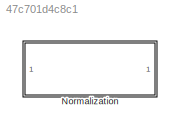
MODEL slx_47c701d4c8c1
KIND library
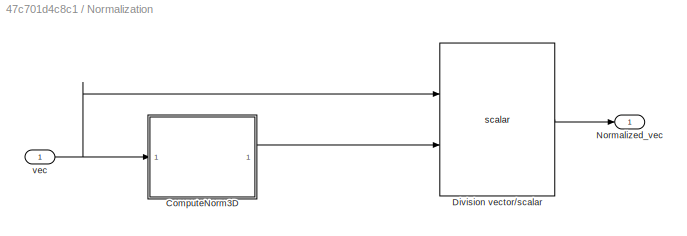
BLOCK [SubSystem] Normalization
  Ports = [1, 1]
  RequestExecContextInheritance = off
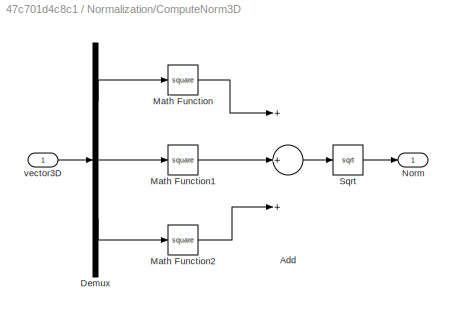
BLOCK [SubSystem] Normalization/ComputeNorm3D
  Ports = [1, 1]
  RequestExecContextInheritance = off
BLOCK [Sum] Normalization/ComputeNorm3D/Add
  InputSameDT = off
  Inputs = +++
  OutDataTypeStr = Inherit: Inherit via internal rule
  Ports = [3, 1]
  SaturateOnIntegerOverflow = off
BLOCK [Demux] Normalization/ComputeNorm3D/Demux
  DisplayOption = bar
  Outputs = 3
  Ports = [1, 3]
BLOCK [Math] Normalization/ComputeNorm3D/Math Function
  Operator = square
  Ports = [1, 1]
BLOCK [Math] Normalization/ComputeNorm3D/Math Function1
  Operator = square
  Ports = [1, 1]
BLOCK [Math] Normalization/ComputeNorm3D/Math Function2
  Operator = square
  Ports = [1, 1]
BLOCK [Outport] Normalization/ComputeNorm3D/Norm
  IconDisplay = Port number
BLOCK [Sqrt] Normalization/ComputeNorm3D/Sqrt
BLOCK [Inport] Normalization/ComputeNorm3D/vector3D
  IconDisplay = Port number
BLOCK [Reference] Normalization/Division vector//scalar  REF=DivisionVectorScalar/Division vector//scalar
  Ports = [2, 1]
  SourceBlock = DivisionVectorScalar/Division vector//scalar
  SourceType = SubSystem
BLOCK [Outport] Normalization/Normalized_vec
  IconDisplay = Port number
BLOCK [Inport] Normalization/vec
  IconDisplay = Port number
LINE Normalization/ComputeNorm3D/Add:1 -> Normalization/ComputeNorm3D/Sqrt:1
LINE Normalization/ComputeNorm3D/Demux:1 -> Normalization/ComputeNorm3D/Math Function:1
LINE Normalization/ComputeNorm3D/Demux:2 -> Normalization/ComputeNorm3D/Math Function1:1
LINE Normalization/ComputeNorm3D/Demux:3 -> Normalization/ComputeNorm3D/Math Function2:1
LINE Normalization/ComputeNorm3D/Math Function1:1 -> Normalization/ComputeNorm3D/Add:2
LINE Normalization/ComputeNorm3D/Math Function2:1 -> Normalization/ComputeNorm3D/Add:3
LINE Normalization/ComputeNorm3D/Math Function:1 -> Normalization/ComputeNorm3D/Add:1
LINE Normalization/ComputeNorm3D/Sqrt:1 -> Normalization/ComputeNorm3D/Norm:1
LINE Normalization/ComputeNorm3D/vector3D:1 -> Normalization/ComputeNorm3D/Demux:1
LINE Normalization/ComputeNorm3D:1 -> Normalization/Division vector//scalar:2
LINE Normalization/Division vector//scalar:1 -> Normalization/Normalized_vec:1
NET Normalization/vec:1 -> Normalization/ComputeNorm3D:1, Normalization/Division vector//scalar:1
note: NET lines group one-source signal fan-out (src -> all destinations, sorted); 1:1 wires keep LINE
